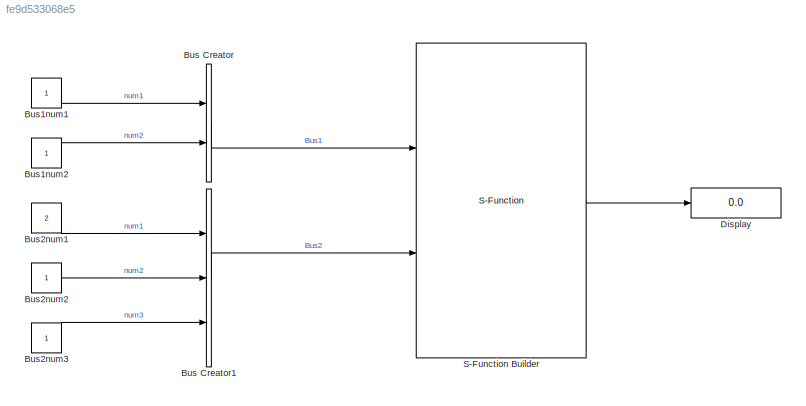
MODEL slx_fe9d533068e5
KIND model
CONFIG AbsTol = auto
CONFIG FixedStep = 0.001
CONFIG MaxStep = auto
CONFIG MinStep = auto
CONFIG PostLoadFcn = , if any(exist('dsrtsu_mdlpostloadfcn', 'file') == [2, 3, 6]), try dsrtsu_mdlpostloadfcn('Execute', bdroot); catch fprintf('Error in PostLoadFcn (dsrtsu_mdlpostloadfcn) for model "%s":\n %s\n', bdroot, lasterr); end, end, \n
CONFIG RelTol = 1e-3
CONFIG SampleTimeConstraint = Unconstrained
CONFIG Solver = ode1
CONFIG SolverMode = Auto
CONFIG SolverName = ode1
CONFIG StartTime = 0.0
CONFIG StopTime = 10
BLOCK [BusCreator] Bus Creator
  DisplayOption = bar
  InheritFromInputs = on
  Inputs = 2
  NonVirtualBus = on
  OutDataTypeStr = Bus: Bus1
  Ports = [2, 1]
BLOCK [BusCreator] Bus Creator1
  DisplayOption = bar
  InheritFromInputs = on
  Inputs = 3
  NonVirtualBus = on
  OutDataTypeStr = Bus: Bus2
  Ports = [3, 1]
BLOCK [Constant] Bus1num1
  OutDataTypeStr = double
BLOCK [Constant] Bus1num2
  OutDataTypeStr = double
BLOCK [Constant] Bus2num1
  OutDataTypeStr = double
  Value = 2
BLOCK [Constant] Bus2num2
  OutDataTypeStr = double
BLOCK [Constant] Bus2num3
  OutDataTypeStr = double
BLOCK [Display] Display
  Decimation = 1
  Ports = [1]
BLOCK [S-Function] S-Function Builder
  CopyFcn = set_param(gcbh,'LinkStatus','none')
  EnableBusSupport = off
  FunctionName = sumBusses
  InitFcn = try, set_param(gcb,'FunctionName','sumBusses'), end
  OpenFcn = sfunctionwizard(gcbh)
  Ports = [2, 1]
  PreSaveFcn = try, set_param(gcb,'FunctionName','sumBusses'), end
  SFunctionDeploymentMode = off
  SFunctionModules = sumBusses_wrapper
LINE Bus Creator1:1 -> S-Function Builder:2
LINE Bus Creator:1 -> S-Function Builder:1
LINE Bus1num1:1 -> Bus Creator:1
LINE Bus1num2:1 -> Bus Creator:2
LINE Bus2num1:1 -> Bus Creator1:1
LINE Bus2num2:1 -> Bus Creator1:2
LINE Bus2num3:1 -> Bus Creator1:3
LINE S-Function Builder:1 -> Display:1
